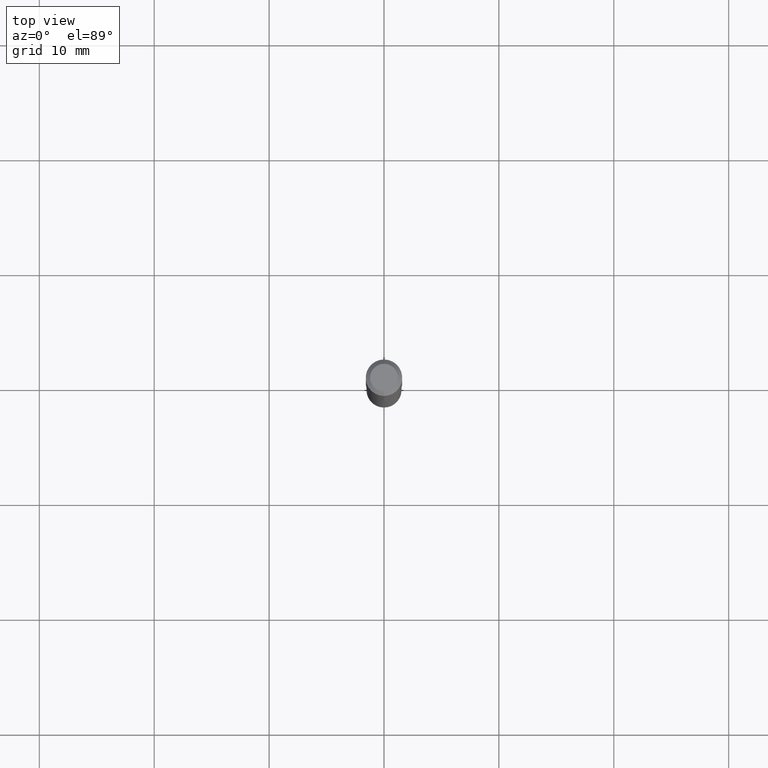
[diagram: clean part render]
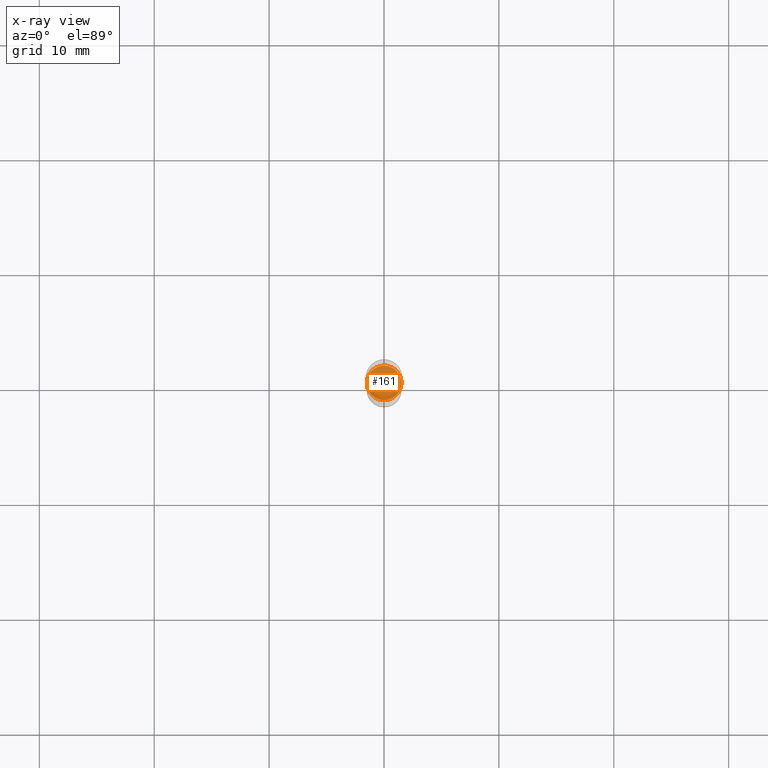
[diagram: x-ray — body ghosted, one internal face saturated and labeled with its STEP entity id]
A machine part, top view, then the same camera in x-ray: the body is ghosted and one INTERNAL B-rep face — a face not visible from any outside direction — is saturated and labeled: STEP entity #161.
In plain terms, the highlighted planar face has unit normal (-0, 0, 1).
Its self-contained STEP definition (entity closure, byte-faithful):
#18 = CARTESIAN_POINT ( 'NONE',  ( 2.592027090295484369E-29, -3.701213445822080051E-15, -1.060000000000000275 ) ) ;
#69 = DIRECTION ( 'NONE',  ( -2.445308575750456249E-29, 3.491710797945357683E-15, 1.000000000000000000 ) ) ;
#83 = ORIENTED_EDGE ( 'NONE', *, *, #337, .F. ) ;
#90 = AXIS2_PLACEMENT_3D ( 'NONE', #297, #69, #341 ) ;
#106 = CARTESIAN_POINT ( 'NONE',  ( 4.245492846166858268E-16, 0.05949999999999628503, -1.060000000000000497 ) ) ;
#107 = CARTESIAN_POINT ( 'NONE',  ( 2.592027090295484369E-29, -3.701213445822080051E-15, -1.060000000000000275 ) ) ;
#109 = CIRCLE ( 'NONE', #401, 0.05949999999999999040 ) ;
#118 = VERTEX_POINT ( 'NONE', #295 ) ;
#161 = ADVANCED_FACE ( 'NONE', ( #376 ), #243, .F. ) ;
#192 = EDGE_LOOP ( 'NONE', ( #440, #83 ) ) ;
#193 = EDGE_CURVE ( 'NONE', #118, #327, #109, .T. ) ;
#224 = DIRECTION ( 'NONE',  ( -2.445308575750456249E-29, 3.491710797945357683E-15, 1.000000000000000000 ) ) ;
#243 = PLANE ( 'NONE',  #302 ) ;
#295 = CARTESIAN_POINT ( 'NONE',  ( -4.154862793223068546E-16, -0.05950000000000369577, -1.059999999999999831 ) ) ;
#297 = CARTESIAN_POINT ( 'NONE',  ( 2.592027090295484369E-29, -3.701213445822080051E-15, -1.060000000000000275 ) ) ;
#302 = AXIS2_PLACEMENT_3D ( 'NONE', #18, #365, #411 ) ;
#327 = VERTEX_POINT ( 'NONE', #106 ) ;
#337 = EDGE_CURVE ( 'NONE', #327, #118, #484, .T. ) ;
#341 = DIRECTION ( 'NONE',  ( -6.982962677686265922E-15, -1.000000000000000000, 4.591341165822292005E-15 ) ) ;
#365 = DIRECTION ( 'NONE',  ( -2.445308575750455688E-29, 3.491710797945358078E-15, 1.000000000000000000 ) ) ;
#376 = FACE_OUTER_BOUND ( 'NONE', #192, .T. ) ;
#401 = AXIS2_PLACEMENT_3D ( 'NONE', #107, #224, #450 ) ;
#411 = DIRECTION ( 'NONE',  ( -6.982962677686265922E-15, -1.000000000000000000, 3.491710797945358078E-15 ) ) ;
#440 = ORIENTED_EDGE ( 'NONE', *, *, #193, .F. ) ;
#450 = DIRECTION ( 'NONE',  ( -6.982962677686265922E-15, -1.000000000000000000, 4.591341165822292005E-15 ) ) ;
#484 = CIRCLE ( 'NONE', #90, 0.05949999999999999040 ) ;